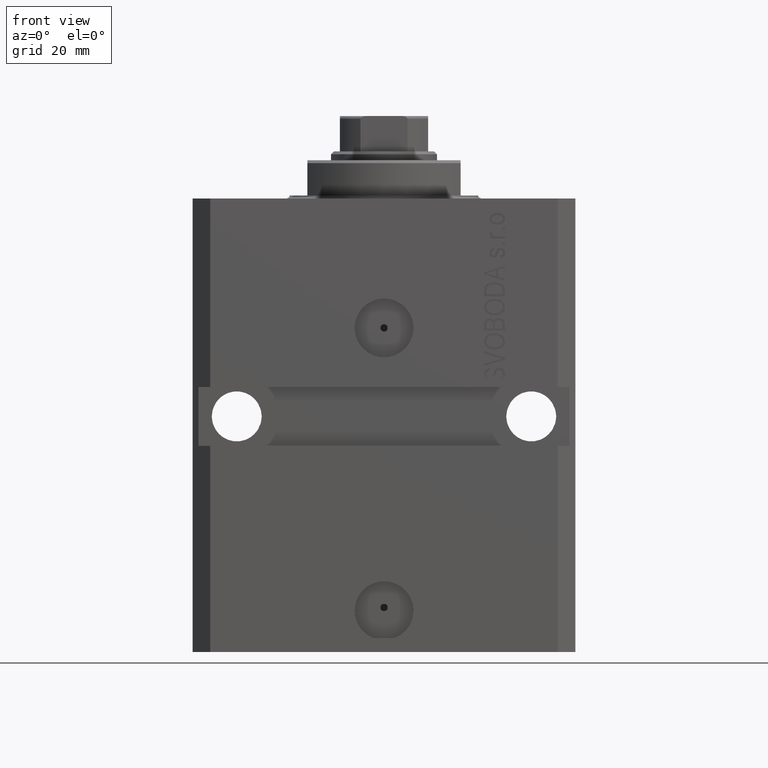
[diagram: clean part render]
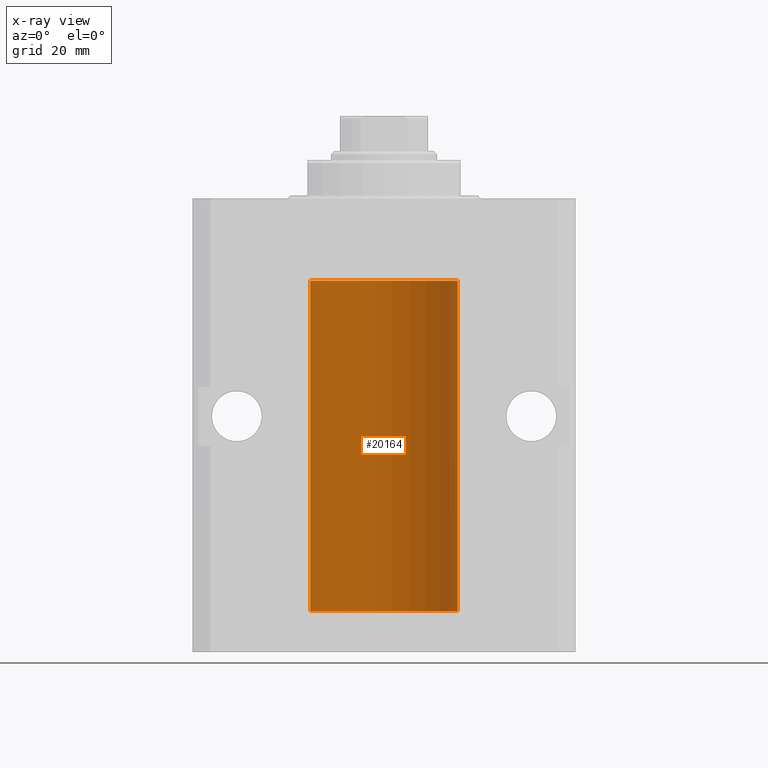
[diagram: x-ray — body ghosted, one internal face saturated and labeled with its STEP entity id]
A machine part, front view, then the same camera in x-ray: the body is ghosted and one INTERNAL B-rep face — a face not visible from any outside direction — is saturated and labeled: STEP entity #20164.
In plain terms, the highlighted cylindrical surface (partial cylindrical patch) has radius 12.5 mm, axis along (0, 0, 1).
Its self-contained STEP definition (entity closure, byte-faithful):
#470 = CARTESIAN_POINT ( 'NONE',  ( 12.49625698805481200, 0.3151108292486943241, -22.54593695688172161 ) ) ;
#482 = CARTESIAN_POINT ( 'NONE',  ( 12.49421963472024721, 0.3844519291903572555, -65.49947303647046226 ) ) ;
#490 = CARTESIAN_POINT ( 'NONE',  ( 12.49999999999999822, 0.1631389616600901760, -64.37500000000022737 ) ) ;
#725 = CARTESIAN_POINT ( 'NONE',  ( 12.49999999999999822, 0.08262306818362624705, -65.62500000000000000 ) ) ;
#1197 = CARTESIAN_POINT ( 'NONE',  ( 12.48809900631782099, 0.5573988467445673001, -65.32640147935475738 ) ) ;
#1318 = CARTESIAN_POINT ( 'NONE',  ( -12.49625855304193678, 0.3150454781038042329, -21.45402800297484802 ) ) ;
#1546 = CARTESIAN_POINT ( 'NONE',  ( -12.48520330846397819, 0.6088355886774127201, -22.16325431852561323 ) ) ;
#1679 = ORIENTED_EDGE ( 'NONE', *, *, #21222, .F. ) ;
#2999 = CARTESIAN_POINT ( 'NONE',  ( -12.48436813453758809, 0.6249418250771181516, -64.83668996798922990 ) ) ;
#4242 = DIRECTION ( 'NONE',  ( -0.000000000000000000, -0.000000000000000000, 1.000000000000000000 ) ) ;
#4384 = DIRECTION ( 'NONE',  ( -0.000000000000000000, -0.000000000000000000, 1.000000000000000000 ) ) ;
#4466 = CARTESIAN_POINT ( 'NONE',  ( -12.48809959379011403, 0.5462151254764975317, -22.31461370481611795 ) ) ;
#4908 = CARTESIAN_POINT ( 'NONE',  ( 12.48436522214846889, 0.6250000000078781426, -21.99999999999923261 ) ) ;
#5158 = LINE ( 'NONE', #34561, #40020 ) ;
#5181 = LINE ( 'NONE', #8107, #35742 ) ;
#5866 = ORIENTED_EDGE ( 'NONE', *, *, #14406, .T. ) ;
#6385 = FACE_OUTER_BOUND ( 'NONE', #35532, .T. ) ;
#6529 = CARTESIAN_POINT ( 'NONE',  ( 12.49012055744648997, 0.5002956126656082914, -64.61641710202404454 ) ) ;
#6841 = CARTESIAN_POINT ( 'NONE',  ( 12.50000000000017941, 3.868073689162038701E-13, -64.37499999999640465 ) ) ;
#7167 = EDGE_CURVE ( 'NONE', #34147, #22135, #43824, .T. ) ;
#7402 = DIRECTION ( 'NONE',  ( -0.000000000000000000, -0.000000000000000000, 1.000000000000000000 ) ) ;
#7987 = VERTEX_POINT ( 'NONE', #17317 ) ;
#8107 = CARTESIAN_POINT ( 'NONE',  ( 12.50000000000000000, 0.000000000000000000, -70.09999999999999432 ) ) ;
#8147 = B_SPLINE_CURVE_WITH_KNOTS ( 'NONE', 3,
 ( #4908, #45673, #26622, #27325, #41328, #42036, #8294, #37705 ),
 .UNSPECIFIED., .F., .F.,
 ( 4, 2, 2, 4 ),
 ( 0.0009773924225142526390, 0.001221629287363798890, 0.001465866152213344924, 0.001954339881912444798 ),
 .UNSPECIFIED. ) ;
#8166 = EDGE_CURVE ( 'NONE', #31430, #26476, #8147, .T. ) ;
#8208 = ORIENTED_EDGE ( 'NONE', *, *, #39482, .T. ) ;
#8294 = CARTESIAN_POINT ( 'NONE',  ( 12.49999999999999112, 0.1631389616600886772, -21.37500000000019185 ) ) ;
#8475 = DIRECTION ( 'NONE',  ( 1.000000000000000000, 0.000000000000000000, 0.000000000000000000 ) ) ;
#8692 = EDGE_CURVE ( 'NONE', #26049, #31430, #27000, .T. ) ;
#8721 = DIRECTION ( 'NONE',  ( -0.000000000000000000, -0.000000000000000000, 1.000000000000000000 ) ) ;
#8919 = ORIENTED_EDGE ( 'NONE', *, *, #36990, .T. ) ;
#9418 = CARTESIAN_POINT ( 'NONE',  ( 12.50000000000000000, 0.000000000000000000, -13.99999999999999822 ) ) ;
#9432 = CIRCLE ( 'NONE', #18705, 12.50000000000000000 ) ;
#9545 = CARTESIAN_POINT ( 'NONE',  ( -12.48436376893640265, 0.6250290278979918623, -65.08132082824472775 ) ) ;
#10154 = ORIENTED_EDGE ( 'NONE', *, *, #37712, .F. ) ;
#10155 = CARTESIAN_POINT ( 'NONE',  ( 12.48810305280568222, 0.5461368461738485003, -64.68525466142676805 ) ) ;
#11107 = CARTESIAN_POINT ( 'NONE',  ( 12.49625698805481022, 0.3151108292486944906, -65.54593695688173227 ) ) ;
#11337 = CARTESIAN_POINT ( 'NONE',  ( 12.50000000000000000, 0.000000000000000000, -70.09999999999999432 ) ) ;
#11401 = CARTESIAN_POINT ( 'NONE',  ( -12.50000000000017941, 3.883381646606358354E-13, -22.62500000000358824 ) ) ;
#11565 = CARTESIAN_POINT ( 'NONE',  ( 12.49421963472024721, 0.3844519291903548686, -22.49947303647045871 ) ) ;
#11696 = CARTESIAN_POINT ( 'NONE',  ( 12.48436522214846711, 0.6250000000078848039, -64.99999999999923261 ) ) ;
#11871 = CARTESIAN_POINT ( 'NONE',  ( -12.50000000000017941, 3.883381774819353300E-13, -65.62500000000359535 ) ) ;
#12145 = ORIENTED_EDGE ( 'NONE', *, *, #38228, .F. ) ;
#12420 = CARTESIAN_POINT ( 'NONE',  ( -12.48810268015257563, 0.5573155909661349217, -21.67347410093867666 ) ) ;
#13246 = CARTESIAN_POINT ( 'NONE',  ( 12.50000000000000000, -6.043189914290669986E-17, -22.62500000000000000 ) ) ;
#13920 = EDGE_CURVE ( 'NONE', #26476, #19614, #5158, .T. ) ;
#14362 = DIRECTION ( 'NONE',  ( 1.000000000000000000, 0.000000000000000000, 0.000000000000000000 ) ) ;
#14406 = EDGE_CURVE ( 'NONE', #21098, #33266, #35447, .T. ) ;
#14509 = VECTOR ( 'NONE', #7402, 1000.000000000000000 ) ;
#15576 = CARTESIAN_POINT ( 'NONE',  ( -12.49631005746706336, 0.3253680783018528255, -22.55856740465392463 ) ) ;
#15688 = CARTESIAN_POINT ( 'NONE',  ( 12.49915742890631876, 0.1636982395582385896, -65.60872397847025184 ) ) ;
#15814 = CARTESIAN_POINT ( 'NONE',  ( -12.48436813453758454, 0.6249418250771192618, -21.83668996798922635 ) ) ;
#16026 = DIRECTION ( 'NONE',  ( 0.000000000000000000, 0.000000000000000000, 1.000000000000000000 ) ) ;
#16040 = CARTESIAN_POINT ( 'NONE',  ( -12.48436376893640443, 0.6250290278979917513, -22.08132082824473486 ) ) ;
#16089 = CARTESIAN_POINT ( 'NONE',  ( -12.50000000000000000, -2.089494013101375120E-17, -21.37499999999999645 ) ) ;
#16350 = VECTOR ( 'NONE', #25312, 1000.000000000000000 ) ;
#17317 = CARTESIAN_POINT ( 'NONE',  ( 12.50000000000000000, -1.836039810331332019E-15, -65.62500000000000000 ) ) ;
#17400 = CARTESIAN_POINT ( 'NONE',  ( 12.48436522214846711, 0.6250000000078848039, -64.99999999999923261 ) ) ;
#17731 = CARTESIAN_POINT ( 'NONE',  ( -12.48810268015257741, 0.5573155909661293705, -64.67347410093867666 ) ) ;
#17749 = CARTESIAN_POINT ( 'NONE',  ( -12.50000000000000000, -1.053276923642966949E-14, -64.37500000000000000 ) ) ;
#17823 = VERTEX_POINT ( 'NONE', #11401 ) ;
#18459 = B_SPLINE_CURVE_WITH_KNOTS ( 'NONE', 3,
 ( #36037, #46210, #20879, #31704, #35082, #17731, #2999, #9545, #24966, #28090, #31946, #46691, #45966, #42333 ),
 .UNSPECIFIED., .F., .F.,
 ( 4, 2, 2, 2, 2, 2, 4 ),
 ( 3.492495172846855184E-18, 0.0002442924852390798859, 0.0004885849704781563023, 0.0009771699409563386254, 0.001221462426195450658, 0.001465754911434562473, 0.001954339881912786538 ),
 .UNSPECIFIED. ) ;
#18705 = AXIS2_PLACEMENT_3D ( 'NONE', #36048, #32668, #14362 ) ;
#19064 = CARTESIAN_POINT ( 'NONE',  ( 12.50000000000000000, -1.836039810331332019E-15, -65.62500000000000000 ) ) ;
#19504 = CIRCLE ( 'NONE', #28733, 12.50000000000000000 ) ;
#19536 = CARTESIAN_POINT ( 'NONE',  ( 12.48436522214846711, 0.6250000000078848039, -64.99999999999923261 ) ) ;
#19614 = VERTEX_POINT ( 'NONE', #9418 ) ;
#19712 = EDGE_CURVE ( 'NONE', #41367, #7987, #28923, .T. ) ;
#19902 = ORIENTED_EDGE ( 'NONE', *, *, #30452, .T. ) ;
#20129 = CARTESIAN_POINT ( 'NONE',  ( -12.50000000000000000, -2.089494013101375120E-17, -21.37499999999999645 ) ) ;
#20164 = ADVANCED_FACE ( 'NONE', ( #6385 ), #35558, .F. ) ;
#20297 = ORIENTED_EDGE ( 'NONE', *, *, #13920, .T. ) ;
#20879 = CARTESIAN_POINT ( 'NONE',  ( -12.49915784441386890, 0.1636601911727943726, -64.39126818989430490 ) ) ;
#21004 = EDGE_CURVE ( 'NONE', #19614, #32924, #9432, .T. ) ;
#21098 = VERTEX_POINT ( 'NONE', #11696 ) ;
#21222 = EDGE_CURVE ( 'NONE', #41367, #34147, #19504, .T. ) ;
#21262 = CARTESIAN_POINT ( 'NONE',  ( 12.49631206032076136, 0.3252904079142934779, -64.44139700214927302 ) ) ;
#22135 = VERTEX_POINT ( 'NONE', #11871 ) ;
#23052 = CARTESIAN_POINT ( 'NONE',  ( -12.50000000000017941, 3.883381646606358354E-13, -22.62500000000358824 ) ) ;
#23280 = CARTESIAN_POINT ( 'NONE',  ( -12.50000000000000000, 0.08260426088729219685, -21.37500000000000000 ) ) ;
#23519 = CARTESIAN_POINT ( 'NONE',  ( -12.49915784441386890, 0.1636601911727947889, -21.39126818989430490 ) ) ;
#24068 = B_SPLINE_CURVE_WITH_KNOTS ( 'NONE', 3,
 ( #19064, #725, #15688, #11107, #482, #1197, #29405, #19536 ),
 .UNSPECIFIED., .F., .F.,
 ( 4, 2, 2, 4 ),
 ( 1.784246692340212412E-18, 0.0002443481056285665750, 0.0004886962112571313068, 0.0009773924225142606621 ),
 .UNSPECIFIED. ) ;
#24212 = DIRECTION ( 'NONE',  ( 1.000000000000000000, 0.000000000000000000, 0.000000000000000000 ) ) ;
#24460 = ORIENTED_EDGE ( 'NONE', *, *, #8166, .T. ) ;
#24966 = CARTESIAN_POINT ( 'NONE',  ( -12.48520330846398174, 0.6088355886774118320, -65.16325431852561678 ) ) ;
#25312 = DIRECTION ( 'NONE',  ( -0.000000000000000000, -0.000000000000000000, 1.000000000000000000 ) ) ;
#25382 = VERTEX_POINT ( 'NONE', #16089 ) ;
#25492 = CARTESIAN_POINT ( 'NONE',  ( -12.50000000000000000, 1.530808498934191521E-15, -70.09999999999999432 ) ) ;
#26029 = CARTESIAN_POINT ( 'NONE',  ( 12.49915742890631876, 0.1636982395582408101, -22.60872397847025894 ) ) ;
#26049 = VERTEX_POINT ( 'NONE', #13246 ) ;
#26267 = CARTESIAN_POINT ( 'NONE',  ( 12.50000000000000178, 0.08262306818362646910, -22.62499999999997158 ) ) ;
#26476 = VERTEX_POINT ( 'NONE', #34630 ) ;
#26622 = CARTESIAN_POINT ( 'NONE',  ( 12.48520578595314845, 0.6087855079133686065, -21.83656717509346024 ) ) ;
#26739 = CARTESIAN_POINT ( 'NONE',  ( 12.48809900631782099, 0.5573988467445616379, -22.32640147935473962 ) ) ;
#26882 = CARTESIAN_POINT ( 'NONE',  ( -12.49011732893843529, 0.5003763274120274218, -22.38348111289287701 ) ) ;
#27000 = B_SPLINE_CURVE_WITH_KNOTS ( 'NONE', 3,
 ( #30584, #26267, #26029, #470, #11565, #26739, #41455, #33490 ),
 .UNSPECIFIED., .F., .F.,
 ( 4, 2, 2, 4 ),
 ( 5.872716678082737689E-20, 0.0002443481056285632140, 0.0004886962112571263195, 0.0009773924225142526390 ),
 .UNSPECIFIED. ) ;
#27325 = CARTESIAN_POINT ( 'NONE',  ( 12.48810305280568222, 0.5461368461738450586, -21.68525466142676805 ) ) ;
#27669 = EDGE_CURVE ( 'NONE', #33266, #26049, #5181, .T. ) ;
#27921 = LINE ( 'NONE', #31777, #43317 ) ;
#28090 = CARTESIAN_POINT ( 'NONE',  ( -12.48809959379011580, 0.5462151254764966435, -65.31461370481613926 ) ) ;
#28733 = AXIS2_PLACEMENT_3D ( 'NONE', #37957, #16026, #24212 ) ;
#28923 = LINE ( 'NONE', #43645, #16350 ) ;
#29405 = CARTESIAN_POINT ( 'NONE',  ( 12.48436522214885969, 0.6250000000001505462, -65.16312747540307271 ) ) ;
#30452 = EDGE_CURVE ( 'NONE', #7987, #21098, #24068, .T. ) ;
#30584 = CARTESIAN_POINT ( 'NONE',  ( 12.50000000000000000, -6.043189914290669986E-17, -22.62500000000000000 ) ) ;
#30721 = ORIENTED_EDGE ( 'NONE', *, *, #21004, .T. ) ;
#31430 = VERTEX_POINT ( 'NONE', #36405 ) ;
#31433 = DIRECTION ( 'NONE',  ( -0.000000000000000000, -0.000000000000000000, 1.000000000000000000 ) ) ;
#31704 = CARTESIAN_POINT ( 'NONE',  ( -12.49625855304193500, 0.3150454781038046770, -64.45402800297485157 ) ) ;
#31777 = CARTESIAN_POINT ( 'NONE',  ( -12.50000000000000000, 1.530808498934191521E-15, -70.09999999999999432 ) ) ;
#31919 = ORIENTED_EDGE ( 'NONE', *, *, #19712, .T. ) ;
#31946 = CARTESIAN_POINT ( 'NONE',  ( -12.49011732893843885, 0.5003763274120245352, -65.38348111289289477 ) ) ;
#32130 = VERTEX_POINT ( 'NONE', #17749 ) ;
#32668 = DIRECTION ( 'NONE',  ( 0.000000000000000000, 0.000000000000000000, 1.000000000000000000 ) ) ;
#32881 = ORIENTED_EDGE ( 'NONE', *, *, #27669, .T. ) ;
#32924 = VERTEX_POINT ( 'NONE', #45992 ) ;
#33266 = VERTEX_POINT ( 'NONE', #6841 ) ;
#33490 = CARTESIAN_POINT ( 'NONE',  ( 12.48436522214846889, 0.6250000000078781426, -21.99999999999923261 ) ) ;
#34030 = AXIS2_PLACEMENT_3D ( 'NONE', #38355, #4384, #8475 ) ;
#34147 = VERTEX_POINT ( 'NONE', #42263 ) ;
#34561 = CARTESIAN_POINT ( 'NONE',  ( 12.50000000000000000, 0.000000000000000000, -70.09999999999999432 ) ) ;
#34630 = CARTESIAN_POINT ( 'NONE',  ( 12.50000000000017941, 3.868073565084946818E-13, -21.37499999999641176 ) ) ;
#35082 = CARTESIAN_POINT ( 'NONE',  ( -12.49422197749724361, 0.3843754434364307082, -64.50047099568097053 ) ) ;
#35264 = ORIENTED_EDGE ( 'NONE', *, *, #8692, .T. ) ;
#35447 = B_SPLINE_CURVE_WITH_KNOTS ( 'NONE', 3,
 ( #17400, #43188, #39802, #10155, #6529, #21262, #490, #44874 ),
 .UNSPECIFIED., .F., .F.,
 ( 4, 2, 2, 4 ),
 ( 0.0009773924225142606621, 0.001221629287363811033, 0.001465866152213361404, 0.001954339881912461711 ),
 .UNSPECIFIED. ) ;
#35532 = EDGE_LOOP ( 'NONE', ( #42526, #1679, #31919, #19902, #5866, #32881, #35264, #24460, #20297, #30721, #12145, #8208, #10154, #8919 ) ) ;
#35558 = CYLINDRICAL_SURFACE ( 'NONE', #34030, 12.50000000000000000 ) ;
#35742 = VECTOR ( 'NONE', #4242, 1000.000000000000000 ) ;
#36037 = CARTESIAN_POINT ( 'NONE',  ( -12.50000000000000000, -1.053276923642966949E-14, -64.37500000000000000 ) ) ;
#36048 = CARTESIAN_POINT ( 'NONE',  ( 0.000000000000000000, 0.000000000000000000, -13.99999999999999822 ) ) ;
#36405 = CARTESIAN_POINT ( 'NONE',  ( 12.48436522214846889, 0.6250000000078781426, -21.99999999999923261 ) ) ;
#36990 = EDGE_CURVE ( 'NONE', #32130, #22135, #18459, .T. ) ;
#37145 = VECTOR ( 'NONE', #8721, 1000.000000000000000 ) ;
#37705 = CARTESIAN_POINT ( 'NONE',  ( 12.50000000000017941, 3.868073565084946818E-13, -21.37499999999641176 ) ) ;
#37712 = EDGE_CURVE ( 'NONE', #32130, #17823, #27921, .T. ) ;
#37734 = CARTESIAN_POINT ( 'NONE',  ( -12.49999999999999289, 0.1631761135151241215, -22.62499999999984013 ) ) ;
#37957 = CARTESIAN_POINT ( 'NONE',  ( 0.000000000000000000, 0.000000000000000000, -70.09999999999999432 ) ) ;
#38228 = EDGE_CURVE ( 'NONE', #25382, #32924, #45394, .T. ) ;
#38355 = CARTESIAN_POINT ( 'NONE',  ( 0.000000000000000000, 0.000000000000000000, -70.09999999999999432 ) ) ;
#39059 = B_SPLINE_CURVE_WITH_KNOTS ( 'NONE', 3,
 ( #20129, #23280, #23519, #1318, #45230, #12420, #15814, #16040, #1546, #4466, #26882, #15576, #37734, #23052 ),
 .UNSPECIFIED., .F., .F.,
 ( 4, 2, 2, 2, 2, 2, 4 ),
 ( 2.030551168097110502E-20, 0.0002442924852390969078, 0.0004885849704781938157, 0.0009771699409563880650, 0.001221462426195485135, 0.001465754911434582423, 0.001954339881912776130 ),
 .UNSPECIFIED. ) ;
#39482 = EDGE_CURVE ( 'NONE', #25382, #17823, #39059, .T. ) ;
#39802 = CARTESIAN_POINT ( 'NONE',  ( 12.48520578595314845, 0.6087855079133740466, -64.83656717509344958 ) ) ;
#40020 = VECTOR ( 'NONE', #31433, 1000.000000000000000 ) ;
#41328 = CARTESIAN_POINT ( 'NONE',  ( 12.49012055744648997, 0.5002956126655978553, -21.61641710202404454 ) ) ;
#41367 = VERTEX_POINT ( 'NONE', #11337 ) ;
#41455 = CARTESIAN_POINT ( 'NONE',  ( 12.48436522214885080, 0.6250000000001435518, -22.16312747540306560 ) ) ;
#41752 = CARTESIAN_POINT ( 'NONE',  ( -12.50000000000000000, 1.530808498934191521E-15, -70.09999999999999432 ) ) ;
#42036 = CARTESIAN_POINT ( 'NONE',  ( 12.49631206032075958, 0.3252904079142805438, -21.44139700214925526 ) ) ;
#42263 = CARTESIAN_POINT ( 'NONE',  ( -12.50000000000000000, 1.530808498934191521E-15, -70.09999999999999432 ) ) ;
#42333 = CARTESIAN_POINT ( 'NONE',  ( -12.50000000000017941, 3.883381774819353300E-13, -65.62500000000359535 ) ) ;
#42526 = ORIENTED_EDGE ( 'NONE', *, *, #7167, .F. ) ;
#43188 = CARTESIAN_POINT ( 'NONE',  ( 12.48436522214888100, 0.6249999999996834754, -64.91847339462351840 ) ) ;
#43317 = VECTOR ( 'NONE', #43362, 1000.000000000000000 ) ;
#43362 = DIRECTION ( 'NONE',  ( -0.000000000000000000, -0.000000000000000000, 1.000000000000000000 ) ) ;
#43645 = CARTESIAN_POINT ( 'NONE',  ( 12.50000000000000000, 0.000000000000000000, -70.09999999999999432 ) ) ;
#43824 = LINE ( 'NONE', #25492, #14509 ) ;
#44874 = CARTESIAN_POINT ( 'NONE',  ( 12.50000000000017941, 3.868073689162038701E-13, -64.37499999999640465 ) ) ;
#45230 = CARTESIAN_POINT ( 'NONE',  ( -12.49422197749724006, 0.3843754434364375916, -21.50047099568095277 ) ) ;
#45394 = LINE ( 'NONE', #41752, #37145 ) ;
#45673 = CARTESIAN_POINT ( 'NONE',  ( 12.48436522214888100, 0.6249999999996767031, -21.91847339462351130 ) ) ;
#45966 = CARTESIAN_POINT ( 'NONE',  ( -12.49999999999999822, 0.1631761135151225950, -65.62499999999985789 ) ) ;
#45992 = CARTESIAN_POINT ( 'NONE',  ( -12.50000000000000000, 1.530808498934191521E-15, -13.99999999999999822 ) ) ;
#46210 = CARTESIAN_POINT ( 'NONE',  ( -12.49999999999999645, 0.08260426088728485550, -64.37499999999998579 ) ) ;
#46691 = CARTESIAN_POINT ( 'NONE',  ( -12.49631005746706514, 0.3253680783018499389, -65.55856740465391397 ) ) ;